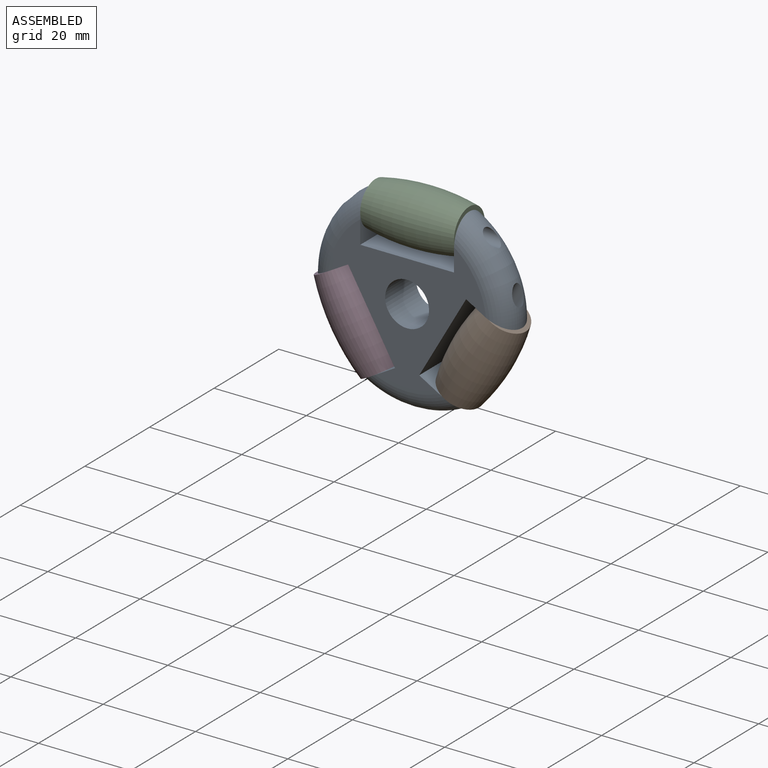
[diagram: assembled view]
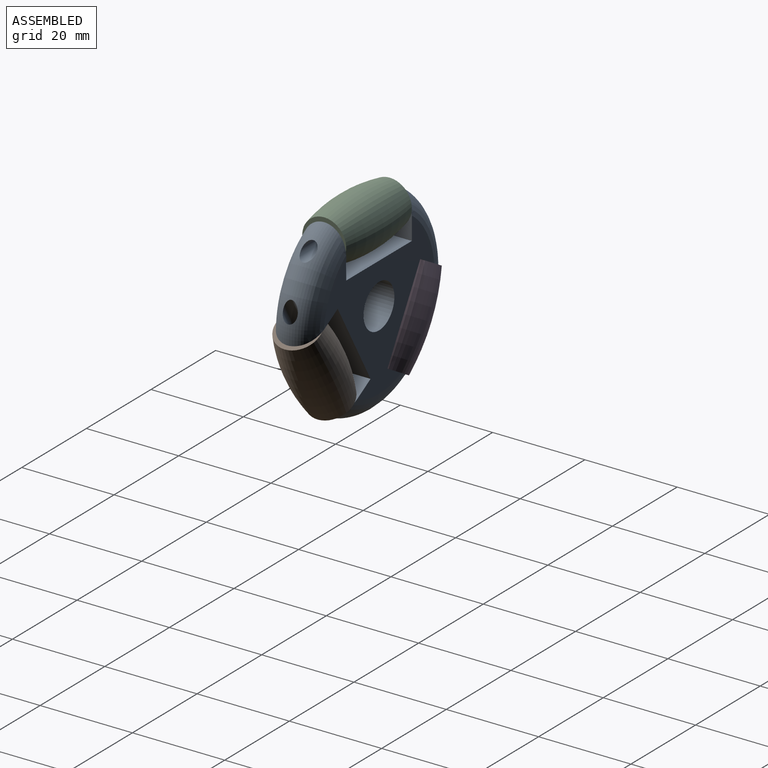
[diagram: assembled view, second angle]
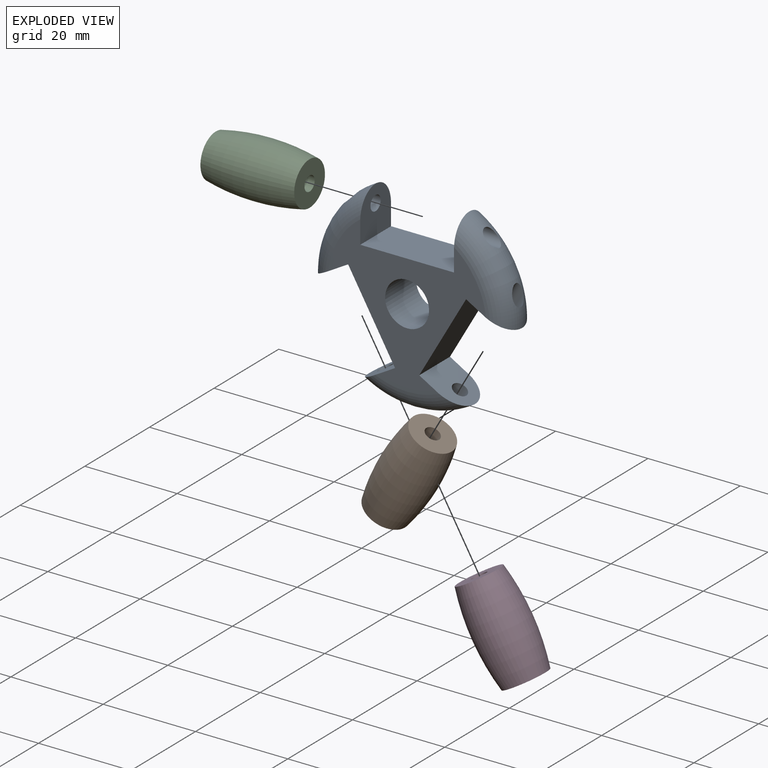
[diagram: exploded view]
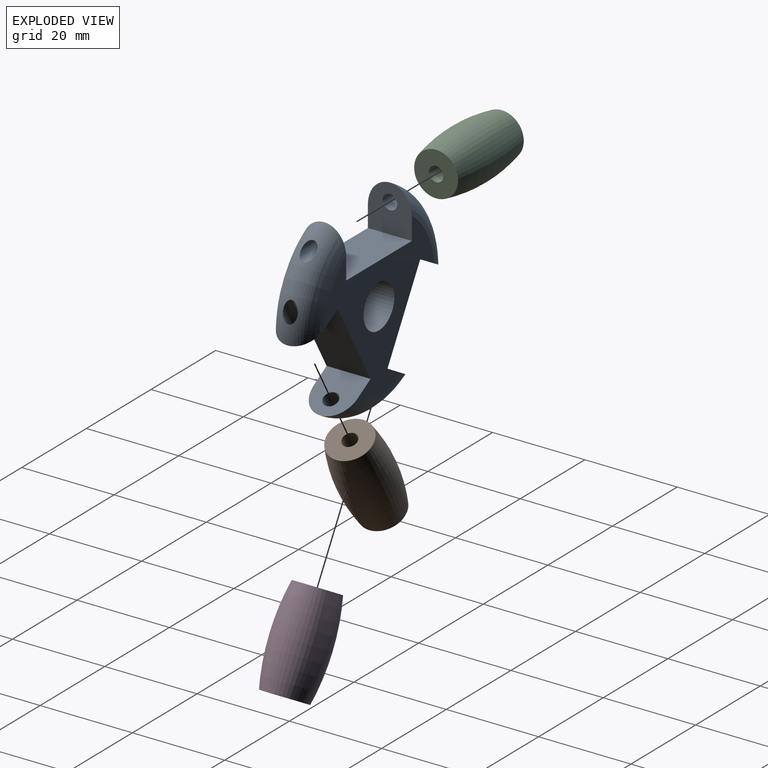
[diagram: exploded view, second angle]
ASSEMBLY  parts=4 mates=6
PART A: 21 faces, bbox 46.7x9.6x44 mm
  f0: plane 32.7x29.52mm, normal (0,1,0), area 388.3mm2, adj f1,f2,f3,f5,f6,f7,f8,f9
  f1: torus R=16.82mm, axis (0,1,0), area 288.5mm2, adj f0,f4,f11,f14,f15,f19
  f2: torus R=16.82mm, axis (0,1,0), area 288.5mm2, adj f0,f4,f8,f10,f17,f20
  f3: torus R=16.82mm, axis (0,1,0), area 288.4mm2, adj f0,f4,f7,f13,f16,f18
  f4: plane 32.7x29.52mm, normal (0,-1,0), area 388.3mm2, adj f1,f2,f3,f5,f6,f7,f8,f9
  f5: cylinder r=4.76mm len=9.53mm, axis (0,-1,0), area 285mm2, adj f0,f4
  f6: plane 17.6x10.16mm, normal (0.87,0,-0.5), area 193.5mm2, adj f0,f4,f7,f8
  f7: plane 9.55x8.8mm, normal (-0.5,0,-0.87), area 77.7mm2, adj f0,f3,f4,f6,f18
  f8: plane 9.55x8.8mm, normal (0.5,0,0.87), area 77.7mm2, adj f0,f2,f4,f6,f17
  f9: plane 17.6x10.16mm, normal (-0.87,0,-0.5), area 193.5mm2, adj f0,f4,f10,f11
  f10: plane 9.55x8.8mm, normal (-0.5,0,0.87), area 77.7mm2, adj f0,f2,f4,f9,f20
  f11: plane 9.55x8.8mm, normal (0.5,0,-0.87), area 77.7mm2, adj f0,f1,f4,f9,f19
  f12: plane 20.32x9.53mm, normal (0,0,1), area 193.5mm2, adj f0,f4,f13,f14
  f13: plane 10.16x9.55mm, normal (-1,0,0), area 77.7mm2, adj f0,f3,f4,f12,f16
  f14: plane 10.16x9.55mm, normal (1,0,0), area 77.7mm2, adj f0,f1,f4,f12,f15
  f15: cylinder r=1.59mm len=6.57mm, axis (1,0,0), area 48.4mm2, adj f1,f14
  f16: cylinder r=1.59mm len=6.57mm, axis (1,0,0), area 48.5mm2, adj f3,f13
  f17: cylinder r=1.59mm len=7.27mm, axis (-0.5,0,-0.87), area 48.4mm2, adj f2,f8
  f18: cylinder r=1.59mm len=7.27mm, axis (-0.5,0,-0.87), area 48.5mm2, adj f3,f7
  f19: cylinder r=1.59mm len=7.27mm, axis (-0.5,0,0.87), area 48.5mm2, adj f1,f11
  f20: cylinder r=1.59mm len=7.27mm, axis (-0.5,0,0.87), area 48.4mm2, adj f2,f10
PART B: 4 faces, bbox 20.3x11.7x11.7 mm
  f0: plane 9.53x9.53mm, normal (1,0,0), area 63.3mm2, adj f1,f3
  f1: revolved ~20.32x11.69mm, area 705.3mm2, adj f0,f2
  f2: plane 9.53x9.53mm, normal (-1,0,0), area 63.3mm2, adj f1,f3
  f3: cylinder r=1.59mm len=20.32mm, axis (-1,0,0), area 202.7mm2, adj f0,f2
PART C: same geometry as B
PART D: same geometry as B
PLACE A t=(0.48,1.01,-0.53)mm fixed
PLACE B rot(axis=(0,-1,0),60deg) t=(13.68,1.01,-8.15)mm
PLACE C t=(0.48,1.01,14.71)mm
PLACE D rot(axis=(0,1,0),60deg) t=(-12.72,1.01,-8.15)mm
MATE cylindrical C.f3 <-> A.f15  axis (-1,0,0) through (0.48,1.01,14.71)mm
MATE planar C.f3 <-> A.f14  axis (-1,0,0) through (-9.68,1.01,14.71)mm
MATE cylindrical D.f3 <-> A.f19  axis (-0.5,0,0.87) through (-7.64,1.01,-16.95)mm
MATE planar B.f3 <-> A.f7  axis (0.5,0,0.87) through (18.76,1.01,0.65)mm
MATE cylindrical B.f3 <-> A.f17  axis (0.5,0,0.87) through (18.76,1.01,0.65)mm
MATE planar D.f3 <-> A.f10  axis (0.5,0,-0.87) through (-7.64,1.01,-16.95)mm
